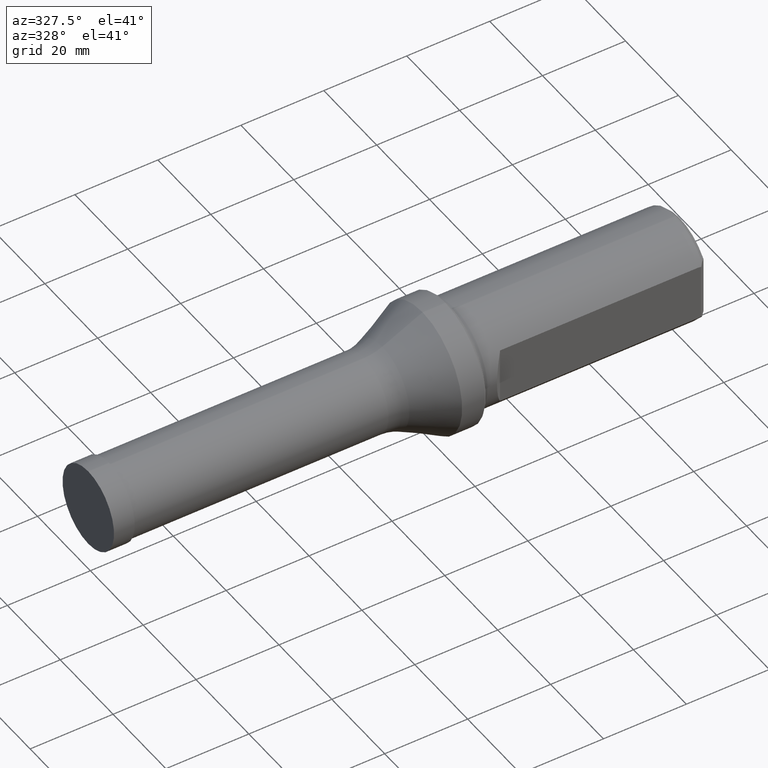
[diagram: clean part render]
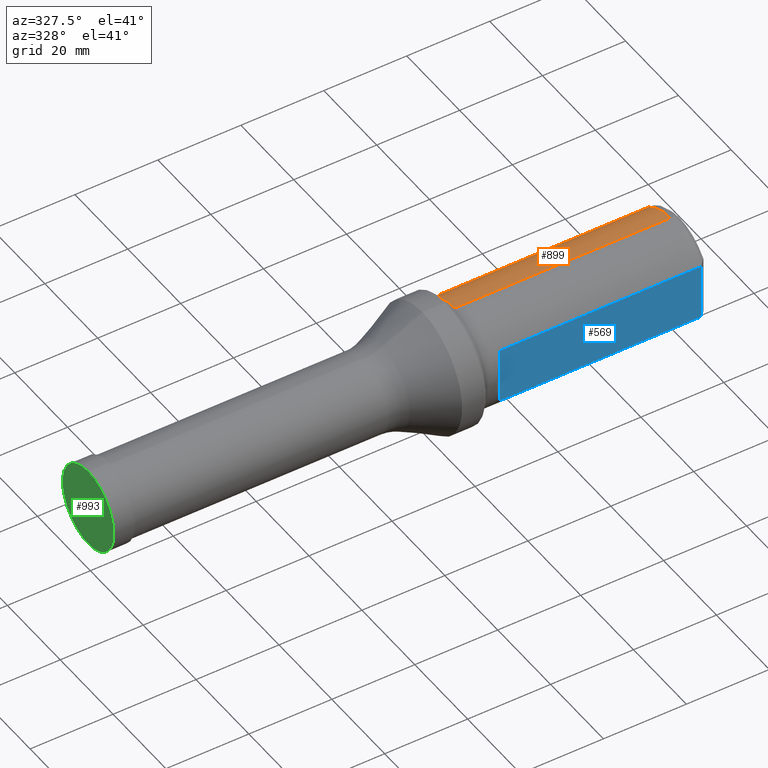
[diagram: same view with three faces highlighted in distinct colors, each labeled with its STEP entity id]
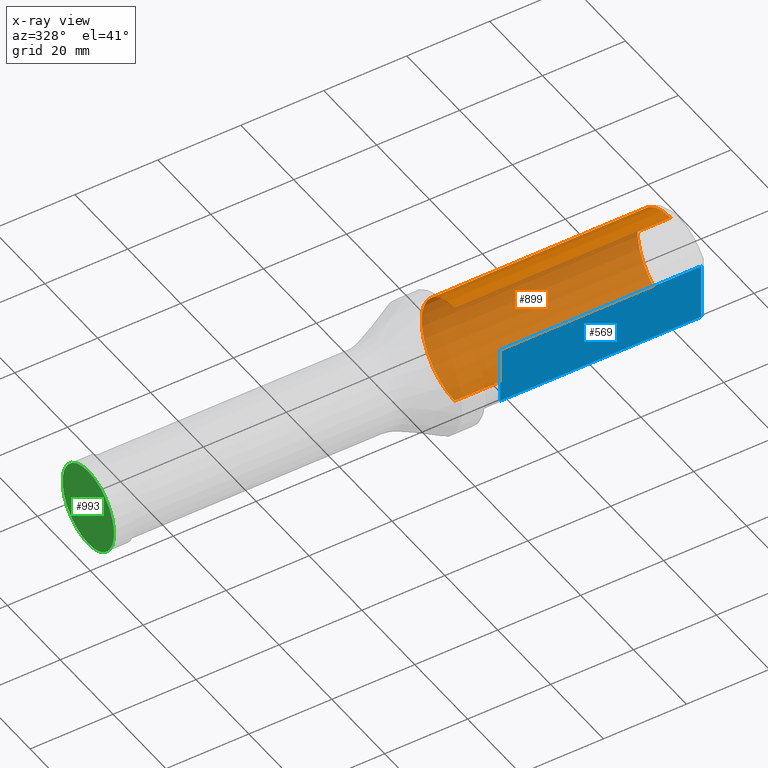
[diagram: x-ray of the same camera — body ghosted, the three highlighted faces saturated]
A machine part, auxiliary view with three faces highlighted in distinct colors.
The next image is the same camera in x-ray (body ghosted, the three faces saturated) — at least one of them is partly hidden behind the body in this view.
Their STEP definitions:

[orange] entity #899 — the highlighted cylindrical surface (partial cylindrical patch) has radius 12.5 mm, axis along (-1, -0, -0).
#13 = DIRECTION ( 'NONE',  ( 0.0000000000000000000, 0.0000000000000000000, 1.000000000000000000 ) ) ;
#77 = CIRCLE ( 'NONE', #97, 12.50000000000000000 ) ;
#83 = ORIENTED_EDGE ( 'NONE', *, *, #262, .T. ) ;
#97 = AXIS2_PLACEMENT_3D ( 'NONE', #529, #560, #556 ) ;
#111 = VERTEX_POINT ( 'NONE', #990 ) ;
#113 = LINE ( 'NONE', #505, #939 ) ;
#164 = AXIS2_PLACEMENT_3D ( 'NONE', #902, #561, #984 ) ;
#196 = EDGE_CURVE ( 'NONE', #315, #710, #477, .T. ) ;
#262 = EDGE_CURVE ( 'NONE', #806, #315, #293, .T. ) ;
#293 = LINE ( 'NONE', #793, #364 ) ;
#309 = EDGE_CURVE ( 'NONE', #111, #806, #77, .T. ) ;
#315 = VERTEX_POINT ( 'NONE', #406 ) ;
#332 = EDGE_CURVE ( 'NONE', #111, #710, #113, .T. ) ;
#364 = VECTOR ( 'NONE', #707, 1000.000000000000000 ) ;
#406 = CARTESIAN_POINT ( 'NONE',  ( 87.82953698905211600, 0.0000000000000000000, -12.50000000000000000 ) ) ;
#444 = EDGE_LOOP ( 'NONE', ( #1030, #83, #584, #1155 ) ) ;
#470 = DIRECTION ( 'NONE',  ( -1.000000000000000000, -0.0000000000000000000, -0.0000000000000000000 ) ) ;
#477 = CIRCLE ( 'NONE', #164, 12.50000000000000000 ) ;
#505 = CARTESIAN_POINT ( 'NONE',  ( -0.5000000000000005600, 0.0000000000000000000, 12.50000000000000000 ) ) ;
#529 = CARTESIAN_POINT ( 'NONE',  ( 139.8500000000001600, 0.0000000000000000000, 0.0000000000000000000 ) ) ;
#556 = DIRECTION ( 'NONE',  ( 0.0000000000000000000, 0.0000000000000000000, 1.000000000000000000 ) ) ;
#560 = DIRECTION ( 'NONE',  ( -1.000000000000000000, -0.0000000000000000000, -0.0000000000000000000 ) ) ;
#561 = DIRECTION ( 'NONE',  ( 1.000000000000000000, -0.0000000000000000000, -0.0000000000000000000 ) ) ;
#584 = ORIENTED_EDGE ( 'NONE', *, *, #196, .T. ) ;
#707 = DIRECTION ( 'NONE',  ( -1.000000000000000000, -0.0000000000000000000, -0.0000000000000000000 ) ) ;
#710 = VERTEX_POINT ( 'NONE', #723 ) ;
#723 = CARTESIAN_POINT ( 'NONE',  ( 87.82953698905211600, 1.530808498934191700E-015, 12.50000000000000000 ) ) ;
#793 = CARTESIAN_POINT ( 'NONE',  ( -0.5000000000000005600, 1.530808498934191500E-015, -12.50000000000000000 ) ) ;
#806 = VERTEX_POINT ( 'NONE', #859 ) ;
#811 = DIRECTION ( 'NONE',  ( -1.000000000000000000, -0.0000000000000000000, -0.0000000000000000000 ) ) ;
#859 = CARTESIAN_POINT ( 'NONE',  ( 139.8500000000001600, 1.530808498934191500E-015, -12.50000000000000000 ) ) ;
#862 = FACE_OUTER_BOUND ( 'NONE', #444, .T. ) ;
#899 = ADVANCED_FACE ( 'NONE', ( #862 ), #933, .T. ) ;
#902 = CARTESIAN_POINT ( 'NONE',  ( 87.82953698905211600, 0.0000000000000000000, 0.0000000000000000000 ) ) ;
#933 = CYLINDRICAL_SURFACE ( 'NONE', #945, 12.50000000000000000 ) ;
#939 = VECTOR ( 'NONE', #470, 1000.000000000000000 ) ;
#945 = AXIS2_PLACEMENT_3D ( 'NONE', #1000, #811, #13 ) ;
#984 = DIRECTION ( 'NONE',  ( 0.0000000000000000000, 0.0000000000000000000, -1.000000000000000000 ) ) ;
#990 = CARTESIAN_POINT ( 'NONE',  ( 139.8500000000001600, 0.0000000000000000000, 12.50000000000000000 ) ) ;
#1000 = CARTESIAN_POINT ( 'NONE',  ( -0.5000000000000005600, 0.0000000000000000000, 0.0000000000000000000 ) ) ;
#1030 = ORIENTED_EDGE ( 'NONE', *, *, #309, .T. ) ;
#1155 = ORIENTED_EDGE ( 'NONE', *, *, #332, .F. ) ;

[blue] entity #569 — the highlighted planar face has unit normal (0, 1, 0).
#23 = VERTEX_POINT ( 'NONE', #80 ) ;
#80 = CARTESIAN_POINT ( 'NONE',  ( 139.8499999999819700, -10.49999999999999800, -6.782329983127953100 ) ) ;
#88 = CARTESIAN_POINT ( 'NONE',  ( 92.09999999999999400, -10.49999999999999100, -13.99999999999999800 ) ) ;
#98 = DIRECTION ( 'NONE',  ( -0.0000000000000000000, -0.0000000000000000000, 1.000000000000000000 ) ) ;
#99 = B_SPLINE_CURVE_WITH_KNOTS ( 'NONE', 3,
 ( #989, #314, #577, #854 ),
 .UNSPECIFIED., .F., .F.,
 ( 4, 4 ),
 ( 0.02308276839015773300, 0.02384089024870078200 ),
 .UNSPECIFIED. ) ;
#146 = DIRECTION ( 'NONE',  ( -0.0000000000000000000, -0.0000000000000000000, 1.000000000000000000 ) ) ;
#151 = ORIENTED_EDGE ( 'NONE', *, *, #626, .F. ) ;
#161 = CARTESIAN_POINT ( 'NONE',  ( 140.5999999999999900, -10.49999999999999800, -13.99999999999999800 ) ) ;
#172 = VECTOR ( 'NONE', #808, 1000.000000000000000 ) ;
#175 = CARTESIAN_POINT ( 'NONE',  ( 139.8499999999819700, -10.49999999999999800, -6.782329983127953100 ) ) ;
#178 = CARTESIAN_POINT ( 'NONE',  ( 140.1000323116046800, -10.49999999999999800, -6.745464730000382000 ) ) ;
#179 = CARTESIAN_POINT ( 'NONE',  ( 140.3500337481315800, -10.49999999999999800, -6.708392011748030900 ) ) ;
#180 = VERTEX_POINT ( 'NONE', #428 ) ;
#184 = CARTESIAN_POINT ( 'NONE',  ( 92.09999999999999400, -10.49999999999999100, 6.782329983125296600 ) ) ;
#188 = B_SPLINE_CURVE_WITH_KNOTS ( 'NONE', 3,
 ( #190, #179, #178, #175 ),
 .UNSPECIFIED., .F., .F.,
 ( 4, 4 ),
 ( 0.02249755105075609100, 0.02325410724549115500 ),
 .UNSPECIFIED. ) ;
#190 = CARTESIAN_POINT ( 'NONE',  ( 140.5999999999999900, -10.49999999999999800, -6.671101858014195000 ) ) ;
#263 = VERTEX_POINT ( 'NONE', #780 ) ;
#269 = ORIENTED_EDGE ( 'NONE', *, *, #540, .T. ) ;
#314 = CARTESIAN_POINT ( 'NONE',  ( 140.1000416703259900, -10.49999999999999800, 6.745463350132194300 ) ) ;
#356 = LINE ( 'NONE', #88, #885 ) ;
#357 = VECTOR ( 'NONE', #743, 1000.000000000000000 ) ;
#388 = VERTEX_POINT ( 'NONE', #184 ) ;
#394 = LINE ( 'NONE', #769, #172 ) ;
#428 = CARTESIAN_POINT ( 'NONE',  ( 140.5999999999999900, -10.49999999999999800, -6.671101858014195000 ) ) ;
#431 = DIRECTION ( 'NONE',  ( -1.000000000000000000, 1.430699774001490200E-016, 0.0000000000000000000 ) ) ;
#451 = DIRECTION ( 'NONE',  ( 1.430699774001490200E-016, 1.000000000000000000, 0.0000000000000000000 ) ) ;
#456 = LINE ( 'NONE', #750, #357 ) ;
#460 = FACE_OUTER_BOUND ( 'NONE', #759, .T. ) ;
#473 = CARTESIAN_POINT ( 'NONE',  ( 140.5999999999999900, -10.49999999999999800, -13.99999999999999800 ) ) ;
#488 = PLANE ( 'NONE',  #1219 ) ;
#524 = ORIENTED_EDGE ( 'NONE', *, *, #746, .F. ) ;
#527 = LINE ( 'NONE', #161, #1182 ) ;
#535 = EDGE_CURVE ( 'NONE', #754, #23, #456, .T. ) ;
#540 = EDGE_CURVE ( 'NONE', #1016, #388, #394, .T. ) ;
#569 = ADVANCED_FACE ( 'NONE', ( #460 ), #488, .F. ) ;
#577 = CARTESIAN_POINT ( 'NONE',  ( 140.3500450070720800, -10.49999999999999800, 6.708390332130807800 ) ) ;
#626 = EDGE_CURVE ( 'NONE', #180, #23, #188, .T. ) ;
#628 = EDGE_CURVE ( 'NONE', #180, #263, #527, .T. ) ;
#654 = EDGE_CURVE ( 'NONE', #754, #388, #356, .T. ) ;
#743 = DIRECTION ( 'NONE',  ( 1.000000000000000000, 0.0000000000000000000, 0.0000000000000000000 ) ) ;
#746 = EDGE_CURVE ( 'NONE', #1016, #263, #99, .T. ) ;
#750 = CARTESIAN_POINT ( 'NONE',  ( -0.5000000000000021100, -10.49999999999997900, -6.782329983125304600 ) ) ;
#754 = VERTEX_POINT ( 'NONE', #771 ) ;
#759 = EDGE_LOOP ( 'NONE', ( #921, #151, #1035, #524, #269, #968 ) ) ;
#769 = CARTESIAN_POINT ( 'NONE',  ( -0.5000000000000021100, -10.49999999999997900, 6.782329983125304600 ) ) ;
#771 = CARTESIAN_POINT ( 'NONE',  ( 92.09999999999999400, -10.49999999999999100, -6.782329983125306300 ) ) ;
#780 = CARTESIAN_POINT ( 'NONE',  ( 140.5999999999999900, -10.49999999999999800, 6.671101858014182500 ) ) ;
#808 = DIRECTION ( 'NONE',  ( -1.000000000000000000, -0.0000000000000000000, -0.0000000000000000000 ) ) ;
#825 = CARTESIAN_POINT ( 'NONE',  ( 139.8500000000001600, -10.49999999999999800, 6.782329983125270800 ) ) ;
#854 = CARTESIAN_POINT ( 'NONE',  ( 140.5999999999999900, -10.49999999999999800, 6.671101858014182500 ) ) ;
#885 = VECTOR ( 'NONE', #98, 1000.000000000000000 ) ;
#921 = ORIENTED_EDGE ( 'NONE', *, *, #535, .T. ) ;
#968 = ORIENTED_EDGE ( 'NONE', *, *, #654, .F. ) ;
#989 = CARTESIAN_POINT ( 'NONE',  ( 139.8500000000001600, -10.49999999999999800, 6.782329983125270800 ) ) ;
#1016 = VERTEX_POINT ( 'NONE', #825 ) ;
#1035 = ORIENTED_EDGE ( 'NONE', *, *, #628, .T. ) ;
#1182 = VECTOR ( 'NONE', #146, 1000.000000000000000 ) ;
#1219 = AXIS2_PLACEMENT_3D ( 'NONE', #473, #451, #431 ) ;

[green] entity #993 — the highlighted planar face has unit normal (1, 0, 0).
#7 = DIRECTION ( 'NONE',  ( 0.0000000000000000000, 0.0000000000000000000, 1.000000000000000000 ) ) ;
#25 = DIRECTION ( 'NONE',  ( -1.000000000000000000, 0.0000000000000000000, 0.0000000000000000000 ) ) ;
#32 = CARTESIAN_POINT ( 'NONE',  ( -0.5000000000000002200, 0.0000000000000000000, 0.0000000000000000000 ) ) ;
#139 = VERTEX_POINT ( 'NONE', #1175 ) ;
#174 = EDGE_LOOP ( 'NONE', ( #498, #658 ) ) ;
#210 = PLANE ( 'NONE',  #446 ) ;
#270 = AXIS2_PLACEMENT_3D ( 'NONE', #32, #25, #7 ) ;
#343 = CARTESIAN_POINT ( 'NONE',  ( -0.5000000000000002200, 1.194030629168669500E-015, -9.750000000000000000 ) ) ;
#351 = VERTEX_POINT ( 'NONE', #343 ) ;
#438 = DIRECTION ( 'NONE',  ( -1.000000000000000000, 0.0000000000000000000, 0.0000000000000000000 ) ) ;
#446 = AXIS2_PLACEMENT_3D ( 'NONE', #721, #489, #935 ) ;
#472 = FACE_OUTER_BOUND ( 'NONE', #174, .T. ) ;
#489 = DIRECTION ( 'NONE',  ( 1.000000000000000000, 0.0000000000000000000, 0.0000000000000000000 ) ) ;
#498 = ORIENTED_EDGE ( 'NONE', *, *, #706, .T. ) ;
#611 = CIRCLE ( 'NONE', #659, 9.750000000000000000 ) ;
#658 = ORIENTED_EDGE ( 'NONE', *, *, #664, .T. ) ;
#659 = AXIS2_PLACEMENT_3D ( 'NONE', #1184, #438, #1085 ) ;
#664 = EDGE_CURVE ( 'NONE', #351, #139, #666, .T. ) ;
#666 = CIRCLE ( 'NONE', #270, 9.750000000000000000 ) ;
#706 = EDGE_CURVE ( 'NONE', #139, #351, #611, .T. ) ;
#721 = CARTESIAN_POINT ( 'NONE',  ( -0.5000000000000002200, 3.535000000000000100, 0.0000000000000000000 ) ) ;
#935 = DIRECTION ( 'NONE',  ( 0.0000000000000000000, 0.0000000000000000000, -1.000000000000000000 ) ) ;
#993 = ADVANCED_FACE ( 'NONE', ( #472 ), #210, .F. ) ;
#1085 = DIRECTION ( 'NONE',  ( 0.0000000000000000000, 0.0000000000000000000, 1.000000000000000000 ) ) ;
#1175 = CARTESIAN_POINT ( 'NONE',  ( -0.5000000000000002200, 0.0000000000000000000, 9.750000000000000000 ) ) ;
#1184 = CARTESIAN_POINT ( 'NONE',  ( -0.5000000000000002200, 0.0000000000000000000, 0.0000000000000000000 ) ) ;